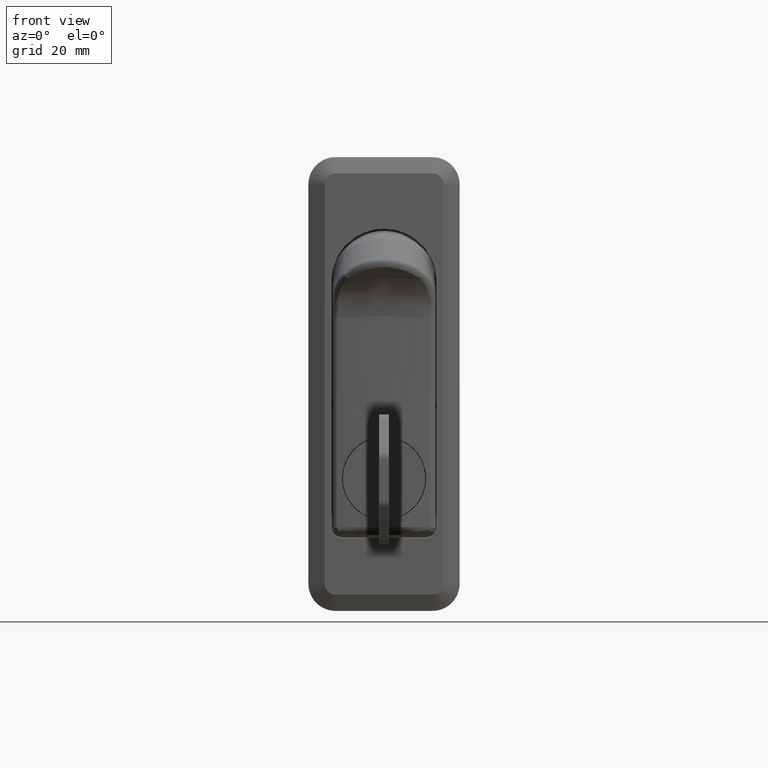
[diagram: clean part render]
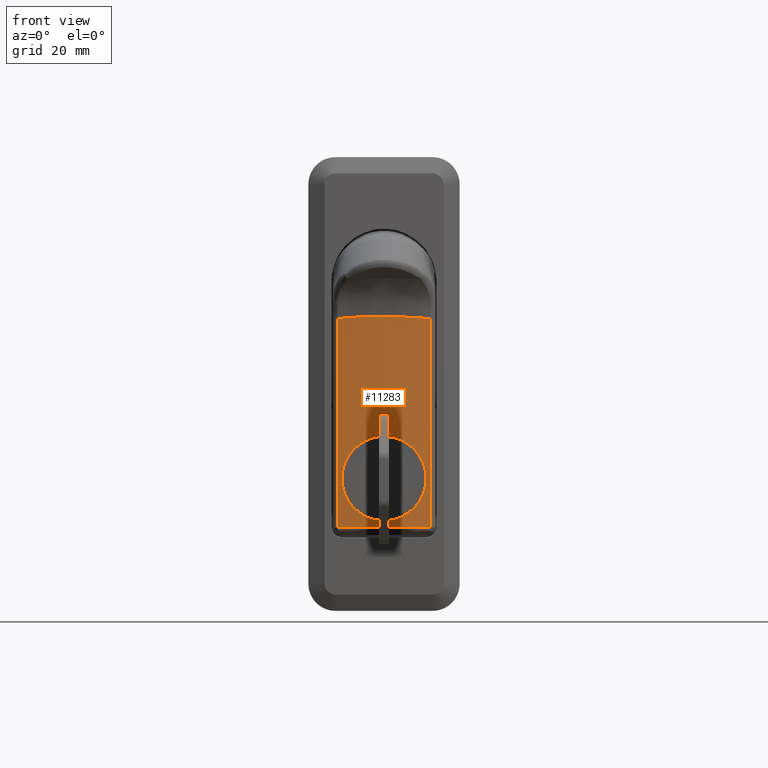
[diagram: same view with one face highlighted and labeled with its STEP entity id]
A machine part, front view. The second image highlights one B-rep face of the part: STEP entity #11283.
In plain terms, the highlighted face is a freeform B-spline surface patch.
Its self-contained STEP definition (entity closure, byte-faithful):
#7575=CARTESIAN_POINT('',(-3.163471673709754,7.797336414500586,-36.704179287148143));
#7576=VERTEX_POINT('',#7575);
#7582=CARTESIAN_POINT('',(-3.499999712627637,-0.002837242277189,-44.299999483977949));
#7583=VERTEX_POINT('',#7582);
#7584=CARTESIAN_POINT('',(-3.499999712627637,-0.002837242277189,-44.299999483977949));
#7585=CARTESIAN_POINT('',(-3.500015667970896,0.506299374181433,-44.300184673988753));
#7586=CARTESIAN_POINT('',(-3.495735134382995,1.012475632470231,-44.250999029313732));
#7587=CARTESIAN_POINT('',(-3.485200652133017,1.641413786318305,-44.126414631079307));
#7588=CARTESIAN_POINT('',(-3.482826722223379,1.767361161596372,-44.098219744974507));
#7589=CARTESIAN_POINT('',(-3.477612909249074,2.016694737102635,-44.035877498881291));
#7590=CARTESIAN_POINT('',(-3.474774316568202,2.140117014045488,-44.001746271888152));
#7591=CARTESIAN_POINT('',(-3.465607052815723,2.506721726917275,-43.890639764998213));
#7592=CARTESIAN_POINT('',(-3.451647054625713,2.985779655732975,-43.719304912791372));
#7593=CARTESIAN_POINT('',(-3.434662004387854,3.445662508486318,-43.502318869206803));
#7594=CARTESIAN_POINT('',(-3.420956011501259,3.783296200561489,-43.322236920489402));
#7595=CARTESIAN_POINT('',(-3.416226218729454,3.894625551788534,-43.259314078862097));
#7596=CARTESIAN_POINT('',(-3.406473164732041,4.114812098047372,-43.127575219378421));
#7597=CARTESIAN_POINT('',(-3.401438688207159,4.223886311615114,-43.058598297777628));
#7598=CARTESIAN_POINT('',(-3.375881920821083,4.757356095233960,-42.702485438314923));
#7599=CARTESIAN_POINT('',(-3.354054737206618,5.150214080764108,-42.379948897204883));
#7600=CARTESIAN_POINT('',(-3.321125267799095,5.690055067060210,-41.841147190471133));
#7601=CARTESIAN_POINT('',(-3.310116086323794,5.861701314641022,-41.652314079863970));
#7602=CARTESIAN_POINT('',(-3.293793206548472,6.106346904465669,-41.354785828961589));
#7603=CARTESIAN_POINT('',(-3.288382158216202,6.185773577053046,-41.253162875337352));
#7604=CARTESIAN_POINT('',(-3.277783479477288,6.338576592193272,-41.047394246230127));
#7605=CARTESIAN_POINT('',(-3.272580507801084,6.412186194893108,-40.942975770278260));
#7606=CARTESIAN_POINT('',(-3.247133087575095,6.766505435989546,-40.413335551028901));
#7607=CARTESIAN_POINT('',(-3.228590825209961,7.006422535973809,-39.965686120730957));
#7608=CARTESIAN_POINT('',(-3.209019564049388,7.251555285499832,-39.375961247960007));
#7609=CARTESIAN_POINT('',(-3.205285778725853,7.297818944389143,-39.256494570323561));
#7610=CARTESIAN_POINT('',(-3.199981935726293,7.362986792672221,-39.074965271195794));
#7611=CARTESIAN_POINT('',(-3.198261893717154,7.384023467534030,-39.014004141236910));
#7612=CARTESIAN_POINT('',(-3.194942522793417,7.424459072807421,-38.891950009361651));
#7613=CARTESIAN_POINT('',(-3.193341140144468,7.443883428015906,-38.830790994304408));
#7614=CARTESIAN_POINT('',(-3.185629973417087,7.537080002209233,-38.524343062034909));
#7615=CARTESIAN_POINT('',(-3.180407612930810,7.599105731557970,-38.277100383500319));
#7616=CARTESIAN_POINT('',(-3.168814332583749,7.735783339281561,-37.592833576520903));
#7617=CARTESIAN_POINT('',(-3.164484697701834,7.785690208717634,-37.151691289452756));
#7618=CARTESIAN_POINT('',(-3.163471673709754,7.797336414500586,-36.704179287148143));
#7619=B_SPLINE_CURVE_WITH_KNOTS('',3,(#7584,#7585,#7586,#7587,#7588,#7589,#7590,#7591,#7592,#7593,#7594,#7595,#7596,#7597,#7598,#7599,#7600,#7601,#7602,#7603,#7604,#7605,#7606,#7607,#7608,#7609,#7610,#7611,#7612,#7613,#7614,#7615,#7616,#7617,#7618),.UNSPECIFIED.,.F.,.U.,(4,2,2,2,1,2,2,2,2,2,2,2,2,2,2,2,2,4),(0.500000000000008,0.531250000000008,0.539062500000008,0.546875000000008,0.562500000000009,0.578125000000009,0.585937500000009,0.593750000000009,0.625000000000009,0.640625000000009,0.648437500000009,0.656250000000010,0.687500000000009,0.695312500000010,0.699218750000010,0.703125000000010,0.718750000000010,0.746015445029521),.UNSPECIFIED.);
#7620=EDGE_CURVE('',#7583,#7576,#7619,.T.);
#7622=CARTESIAN_POINT('',(-3.163471994362835,-7.797336546078635,-36.295820709390213));
#7623=VERTEX_POINT('',#7622);
#7624=CARTESIAN_POINT('',(-3.163471994362835,-7.797336546078635,-36.295820709390213));
#7625=CARTESIAN_POINT('',(-3.163321156371905,-7.799069992812277,-36.362423699482257));
#7626=CARTESIAN_POINT('',(-3.163244014223719,-7.799953370555923,-36.429073223115168));
#7627=CARTESIAN_POINT('',(-3.163228942735241,-7.800127780787051,-36.750240093922969));
#7628=CARTESIAN_POINT('',(-3.164294225022513,-7.787845046546245,-37.005390998736310));
#7629=CARTESIAN_POINT('',(-3.167534320797989,-7.750210759453220,-37.389168831290682));
#7630=CARTESIAN_POINT('',(-3.168890069566218,-7.734434385301294,-37.517268215268430));
#7631=CARTESIAN_POINT('',(-3.172108880973109,-7.696817179983642,-37.770951854864691));
#7632=CARTESIAN_POINT('',(-3.173974504731427,-7.674946617231197,-37.896899461223512));
#7633=CARTESIAN_POINT('',(-3.184528845581640,-7.550536549372821,-38.522240980591683));
#7634=CARTESIAN_POINT('',(-3.196896131477537,-7.403256069825067,-39.008570309577181));
#7635=CARTESIAN_POINT('',(-3.216404503623982,-7.159095108365786,-39.598965161224072));
#7636=CARTESIAN_POINT('',(-3.220508564996718,-7.107232861614247,-39.716160450932328));
#7637=CARTESIAN_POINT('',(-3.229099221913261,-6.997326777128419,-39.948748961179220));
#7638=CARTESIAN_POINT('',(-3.233572930704840,-6.939443150165293,-40.063766163581327));
#7639=CARTESIAN_POINT('',(-3.247374451028131,-6.758398814999707,-40.402502499077052));
#7640=CARTESIAN_POINT('',(-3.257120055234323,-6.627382014202743,-40.620954586819607));
#7641=CARTESIAN_POINT('',(-3.287536729775205,-6.204084969772434,-41.254725796595892));
#7642=CARTESIAN_POINT('',(-3.309393832339932,-5.881856712763933,-41.648672096851101));
#7643=CARTESIAN_POINT('',(-3.342739350694262,-5.335973063136458,-42.195052772893540));
#7644=CARTESIAN_POINT('',(-3.353771202506427,-5.146336511413446,-42.366853647579539));
#7645=CARTESIAN_POINT('',(-3.375322453370879,-4.752877751465729,-42.689904001653922));
#7646=CARTESIAN_POINT('',(-3.396375368744553,-4.345016026799991,-42.992613587090077));
#7647=CARTESIAN_POINT('',(-3.415841590578607,-3.908516880629391,-43.254921005647532));
#7648=CARTESIAN_POINT('',(-3.429622876040225,-3.570153697501830,-43.436162904118142));
#7649=CARTESIAN_POINT('',(-3.434085485765753,-3.455384706556329,-43.494059599962164));
#7650=CARTESIAN_POINT('',(-3.442675604895467,-3.222721226223690,-43.604267975527840));
#7651=CARTESIAN_POINT('',(-3.446778712544513,-3.105500489403909,-43.656269763110743));
#7652=CARTESIAN_POINT('',(-3.466280445576667,-2.515041126188560,-43.901084345173480));
#7653=CARTESIAN_POINT('',(-3.478636383421019,-2.028859119724737,-44.048747894770521));
#7654=CARTESIAN_POINT('',(-3.489194653490481,-1.404005116136566,-44.173656839347672));
#7655=CARTESIAN_POINT('',(-3.491061971316744,-1.278170308250221,-44.195628158511532));
#7656=CARTESIAN_POINT('',(-3.494286637648604,-1.024744852063868,-44.233454000175122));
#7657=CARTESIAN_POINT('',(-3.495646433139064,-0.896844372693256,-44.249337064727783));
#7658=CARTESIAN_POINT('',(-3.498909714584933,-0.512719190361299,-44.287383450704198));
#7659=CARTESIAN_POINT('',(-3.499991734955923,-0.257405556195503,-44.299906888824637));
#7660=CARTESIAN_POINT('',(-3.499999712627637,-0.002837242277189,-44.299999483977949));
#7661=B_SPLINE_CURVE_WITH_KNOTS('',3,(#7624,#7625,#7626,#7627,#7628,#7629,#7630,#7631,#7632,#7633,#7634,#7635,#7636,#7637,#7638,#7639,#7640,#7641,#7642,#7643,#7644,#7645,#7646,#7647,#7648,#7649,#7650,#7651,#7652,#7653,#7654,#7655,#7656,#7657,#7658,#7659,#7660),.UNSPECIFIED.,.F.,.U.,(4,2,2,2,2,2,2,2,2,2,2,1,2,2,2,2,2,2,4),(0.245904745269688,0.250000000000004,0.265625000000004,0.273437500000004,0.281250000000005,0.312500000000006,0.320312500000006,0.328125000000006,0.343750000000006,0.375000000000006,0.390625000000007,0.406250000000007,0.421875000000007,0.429687500000007,0.437500000000007,0.468750000000007,0.476562500000008,0.484375000000008,0.500000000000008),.UNSPECIFIED.);
#7662=EDGE_CURVE('',#7623,#7583,#7661,.T.);
#7738=CARTESIAN_POINT('',(-3.499999757066496,-0.000001150738018,-28.699999999999999));
#7739=VERTEX_POINT('',#7738);
#7740=CARTESIAN_POINT('',(-3.499999757066496,-0.000001150738018,-28.699999999999999));
#7741=CARTESIAN_POINT('',(-3.499999757066489,-0.515562426193243,-28.700000084336210));
#7742=CARTESIAN_POINT('',(-3.495597687190028,-1.022460644603922,-28.750612985866660));
#7743=CARTESIAN_POINT('',(-3.483025836149183,-1.770355733733357,-28.899313029341091));
#7744=CARTESIAN_POINT('',(-3.477839780578404,-2.017563353085154,-28.961100226698960));
#7745=CARTESIAN_POINT('',(-3.468646209309283,-2.385169214698864,-29.072527109207591));
#7746=CARTESIAN_POINT('',(-3.465339190721322,-2.507399361564853,-29.112882891797799));
#7747=CARTESIAN_POINT('',(-3.458298075469847,-2.749719009198963,-29.199616855875082));
#7748=CARTESIAN_POINT('',(-3.454579494559249,-2.869312525961688,-29.245803497850080));
#7749=CARTESIAN_POINT('',(-3.435083317682315,-3.459610832662694,-29.490547848527861));
#7750=CARTESIAN_POINT('',(-3.416598271681636,-3.907526401609858,-29.730143556936330));
#7751=CARTESIAN_POINT('',(-3.391212130969506,-4.437337336844151,-30.083907852095209));
#7752=CARTESIAN_POINT('',(-3.386020896400539,-4.541781766894414,-30.157398768743580));
#7753=CARTESIAN_POINT('',(-3.375444473272010,-4.747587672685808,-30.309945100964580));
#7754=CARTESIAN_POINT('',(-3.370044200645016,-4.849220191055627,-30.389228511536139));
#7755=CARTESIAN_POINT('',(-3.353729695683567,-5.147137522582325,-30.633744931776679));
#7756=CARTESIAN_POINT('',(-3.342722290768216,-5.336187765966442,-30.805291030203659));
#7757=CARTESIAN_POINT('',(-3.309786841879504,-5.875550523263638,-31.344761508728968));
#7758=CARTESIAN_POINT('',(-3.287940460599099,-6.198340293249832,-31.737280812875309));
#7759=CARTESIAN_POINT('',(-3.262343226122799,-6.554723666608964,-32.270112076974222));
#7760=CARTESIAN_POINT('',(-3.257297063471891,-6.623790927567764,-32.379103581172252));
#7761=CARTESIAN_POINT('',(-3.247511674176399,-6.755805818474379,-32.599297913989389));
#7762=CARTESIAN_POINT('',(-3.242765544336312,-6.818856087528687,-32.710621389214950));
#7763=CARTESIAN_POINT('',(-3.229010309363035,-6.999295691763164,-33.048205928447238));
#7764=CARTESIAN_POINT('',(-3.211959004056598,-7.216693254409475,-33.507939243670833));
#7765=CARTESIAN_POINT('',(-3.197934065031241,-7.388376866612656,-33.986654386628253));
#7766=CARTESIAN_POINT('',(-3.188719106554131,-7.499746669681836,-34.352917764831837));
#7767=CARTESIAN_POINT('',(-3.185864778992981,-7.533965959417987,-34.476212193767203));
#7768=CARTESIAN_POINT('',(-3.180619830171640,-7.596489489043802,-34.725259507440562));
#7769=CARTESIAN_POINT('',(-3.178226521727996,-7.624824809106013,-34.851246448201067));
#7770=CARTESIAN_POINT('',(-3.168712548267763,-7.736974165382075,-35.414606691966277));
#7771=CARTESIAN_POINT('',(-3.164472168342348,-7.785842968135106,-35.854190723990733));
#7772=CARTESIAN_POINT('',(-3.163471994362835,-7.797336546078635,-36.295820709390213));
#7773=B_SPLINE_CURVE_WITH_KNOTS('',3,(#7740,#7741,#7742,#7743,#7744,#7745,#7746,#7747,#7748,#7749,#7750,#7751,#7752,#7753,#7754,#7755,#7756,#7757,#7758,#7759,#7760,#7761,#7762,#7763,#7764,#7765,#7766,#7767,#7768,#7769,#7770,#7771,#7772),.UNSPECIFIED.,.F.,.U.,(4,2,2,2,2,2,2,2,2,2,2,2,1,2,2,2,4),(0.0,0.031250000000000,0.046875000000001,0.054687500000001,0.062500000000001,0.093750000000001,0.101562500000001,0.109375000000001,0.125000000000001,0.156250000000002,0.164062500000002,0.171875000000002,0.187500000000003,0.203125000000003,0.210937500000003,0.218750000000003,0.245904745269688),.UNSPECIFIED.);
#7774=EDGE_CURVE('',#7739,#7623,#7773,.T.);
#7776=CARTESIAN_POINT('',(-3.163471673709754,7.797336414500586,-36.704179287148143));
#7777=CARTESIAN_POINT('',(-3.163323631021384,7.799038461200506,-36.638780166899039));
#7778=CARTESIAN_POINT('',(-3.163246420248489,7.799923385924488,-36.573245010456823));
#7779=CARTESIAN_POINT('',(-3.163230088470303,7.800112286493918,-36.378810596620802));
#7780=CARTESIAN_POINT('',(-3.163496072291616,7.797039675156274,-36.250137154258518));
#7781=CARTESIAN_POINT('',(-3.164567899994566,7.784635492853665,-35.994320071099857));
#7782=CARTESIAN_POINT('',(-3.165373665599750,7.775304750892115,-35.866962498346673));
#7783=CARTESIAN_POINT('',(-3.168579753596143,7.738066136513823,-35.486517980601860));
#7784=CARTESIAN_POINT('',(-3.174957943115276,7.663801189279785,-34.983592872619482));
#7785=CARTESIAN_POINT('',(-3.185326084991025,7.540710085396992,-34.489263008901631));
#7786=CARTESIAN_POINT('',(-3.194516311105883,7.429700325421915,-34.121804343924552));
#7787=CARTESIAN_POINT('',(-3.197817094488126,7.389554841038889,-33.999807647248602));
#7788=CARTESIAN_POINT('',(-3.204868537733145,7.302973740350055,-33.757180049994332));
#7789=CARTESIAN_POINT('',(-3.208592687316620,7.256862816287514,-33.637449555494420));
#7790=CARTESIAN_POINT('',(-3.228116960840428,7.012505088493068,-33.046543076486380));
#7791=CARTESIAN_POINT('',(-3.246624612588141,6.773244435665463,-32.598384090544677));
#7792=CARTESIAN_POINT('',(-3.272017682079964,6.420102479674916,-32.068472856671292));
#7793=CARTESIAN_POINT('',(-3.277209279373178,6.346746254000917,-31.964018684805289));
#7794=CARTESIAN_POINT('',(-3.287784027627200,6.194494560151678,-31.758211733449080));
#7795=CARTESIAN_POINT('',(-3.293179300789584,6.115417135363895,-31.656639361796710));
#7796=CARTESIAN_POINT('',(-3.309513168700775,5.870979303228857,-31.358242097251679));
#7797=CARTESIAN_POINT('',(-3.320528947033071,5.699505827402593,-31.168932548400939));
#7798=CARTESIAN_POINT('',(-3.353474538822764,5.160351159968386,-30.628923984425011));
#7799=CARTESIAN_POINT('',(-3.375306887205249,4.768170657147190,-30.305880074617150));
#7800=CARTESIAN_POINT('',(-3.400868882647933,4.236057231729217,-29.949259113195421));
#7801=CARTESIAN_POINT('',(-3.405908091778105,4.127209537151368,-29.880134286370829));
#7802=CARTESIAN_POINT('',(-3.415694038182095,3.906961875467473,-29.747805360603021));
#7803=CARTESIAN_POINT('',(-3.420439451821570,3.795621694069326,-29.684610528429939));
#7804=CARTESIAN_POINT('',(-3.434190306492637,3.458019280058488,-29.503766901298420));
#7805=CARTESIAN_POINT('',(-3.451229778601971,2.998348056911369,-29.285909378219340));
#7806=CARTESIAN_POINT('',(-3.465239996229172,2.519893506379378,-29.113850890708601));
#7807=CARTESIAN_POINT('',(-3.474446668431591,2.153912261328041,-29.002205400049199));
#7808=CARTESIAN_POINT('',(-3.477298697158392,2.030726353438128,-28.967895120579328));
#7809=CARTESIAN_POINT('',(-3.482540663701090,1.781927536913650,-28.905186708674670));
#7810=CARTESIAN_POINT('',(-3.484934584715298,1.656040204929170,-28.876741767854242));
#7811=CARTESIAN_POINT('',(-3.495595242732047,1.025524106743877,-28.750618572524889));
#7812=CARTESIAN_POINT('',(-3.499999757066340,0.515560145156425,-28.699999916196042));
#7813=CARTESIAN_POINT('',(-3.499999757066496,-0.000001150738018,-28.699999999999999));
#7814=B_SPLINE_CURVE_WITH_KNOTS('',3,(#7776,#7777,#7778,#7779,#7780,#7781,#7782,#7783,#7784,#7785,#7786,#7787,#7788,#7789,#7790,#7791,#7792,#7793,#7794,#7795,#7796,#7797,#7798,#7799,#7800,#7801,#7802,#7803,#7804,#7805,#7806,#7807,#7808,#7809,#7810,#7811,#7812,#7813),.UNSPECIFIED.,.F.,.U.,(4,2,2,2,1,2,2,2,2,2,2,2,2,2,2,1,2,2,2,4),(0.746015445029521,0.750000000000010,0.757812500000010,0.765625000000010,0.781250000000010,0.796875000000010,0.804687500000009,0.812500000000009,0.843750000000007,0.851562500000007,0.859375000000006,0.875000000000006,0.906250000000005,0.914062500000004,0.921875000000004,0.937500000000003,0.953125000000002,0.960937500000002,0.968750000000002,1.0),.UNSPECIFIED.);
#7815=EDGE_CURVE('',#7576,#7739,#7814,.T.);
#8790=CARTESIAN_POINT('',(-3.090934114809360,8.594972056695720,-45.461099677032287));
#8791=VERTEX_POINT('',#8790);
#8792=CARTESIAN_POINT('',(-3.090934336830985,-8.594972030980911,-45.461099698145702));
#8793=VERTEX_POINT('',#8792);
#8794=CARTESIAN_POINT('',(-3.090934114809360,8.594972056695720,-45.461099677032287));
#8795=CARTESIAN_POINT('',(-3.910922684611546,0.000000023447813,-45.539077789100780));
#8796=CARTESIAN_POINT('',(-3.090934336830928,-8.594972030980898,-45.461099698145773));
#8804=(BOUNDED_CURVE()B_SPLINE_CURVE(2,(#8794,#8795,#8796),.UNSPECIFIED.,.F.,.U.)CURVE()GEOMETRIC_REPRESENTATION_ITEM()QUASI_UNIFORM_CURVE()RATIONAL_B_SPLINE_CURVE((1.0,0.995479939973218,1.0))REPRESENTATION_ITEM(''));
#8805=EDGE_CURVE('',#8791,#8793,#8804,.T.);
#9341=CARTESIAN_POINT('',(-3.090934114809360,8.594972056695681,-6.884627121455281));
#9342=VERTEX_POINT('',#9341);
#9343=CARTESIAN_POINT('',(-3.090934114809360,8.594972056695681,-6.884627121455281));
#9344=CARTESIAN_POINT('',(-3.090934114809360,8.594972056695720,-45.461099677032287));
#9345=QUASI_UNIFORM_CURVE('',1,(#9343,#9344),.UNSPECIFIED.,.F.,.U.);
#9346=EDGE_CURVE('',#9342,#8791,#9345,.T.);
#10066=CARTESIAN_POINT('',(-3.090934336830985,-8.594972030980900,-6.884626874900880));
#10067=VERTEX_POINT('',#10066);
#10123=CARTESIAN_POINT('',(-3.090934336830985,-8.594972030980911,-45.461099698145702));
#10124=CARTESIAN_POINT('',(-3.090934336830985,-8.594972030980900,-6.884626874900880));
#10125=QUASI_UNIFORM_CURVE('',1,(#10123,#10124),.UNSPECIFIED.,.F.,.U.);
#10126=EDGE_CURVE('',#8793,#10067,#10125,.T.);
#10168=CARTESIAN_POINT('',(-3.090934336830985,-8.594972030980900,-6.884626874900880));
#10169=CARTESIAN_POINT('',(-3.910922684611587,0.000000023448032,-5.974032101741286));
#10170=CARTESIAN_POINT('',(-3.090934114809360,8.594972056695681,-6.884627121455281));
#10178=(BOUNDED_CURVE()B_SPLINE_CURVE(2,(#10168,#10169,#10170),.UNSPECIFIED.,.F.,.U.)CURVE()GEOMETRIC_REPRESENTATION_ITEM()QUASI_UNIFORM_CURVE()RATIONAL_B_SPLINE_CURVE((1.0,0.995479939973294,1.0))REPRESENTATION_ITEM(''));
#10179=EDGE_CURVE('',#10067,#9342,#10178,.T.);
#11257=CARTESIAN_POINT('',(-3.005358806449677,9.449092140222190,-5.453619877772896));
#11258=CARTESIAN_POINT('',(-3.005358806449677,9.449092140222190,-46.501159935936911));
#11259=CARTESIAN_POINT('',(-3.997362909867226,-0.000037468983345,-5.453619877772897));
#11260=CARTESIAN_POINT('',(-3.997362909867226,-0.000037468983345,-46.501159935936911));
#11261=CARTESIAN_POINT('',(-3.005351263907826,-9.449166286342271,-5.453619877772895));
#11262=CARTESIAN_POINT('',(-3.005351263907826,-9.449166286342271,-46.501159935936904));
#11270=(BOUNDED_SURFACE()B_SPLINE_SURFACE(1,2,((#11257,#11259,#11261),(#11258,#11260,#11262)),.UNSPECIFIED.,.F.,.F.,.U.)B_SPLINE_SURFACE_WITH_KNOTS((2,2),(3,3),(0.0,41.047540058164010),(0.0,18.950045918942131),.UNSPECIFIED.)GEOMETRIC_REPRESENTATION_ITEM()RATIONAL_B_SPLINE_SURFACE(((0.997907052467862,0.992407228204057,0.997815398722046),(0.997907052467862,0.992407228204057,0.997815398722046)))REPRESENTATION_ITEM('')SURFACE());
#11271=ORIENTED_EDGE('',*,*,#9346,.T.);
#11272=ORIENTED_EDGE('',*,*,#8805,.T.);
#11273=ORIENTED_EDGE('',*,*,#10126,.T.);
#11274=ORIENTED_EDGE('',*,*,#10179,.T.);
#11275=EDGE_LOOP('',(#11271,#11272,#11273,#11274));
#11276=FACE_OUTER_BOUND('',#11275,.T.);
#11277=ORIENTED_EDGE('',*,*,#7774,.T.);
#11278=ORIENTED_EDGE('',*,*,#7662,.T.);
#11279=ORIENTED_EDGE('',*,*,#7620,.T.);
#11280=ORIENTED_EDGE('',*,*,#7815,.T.);
#11281=EDGE_LOOP('',(#11277,#11278,#11279,#11280));
#11282=FACE_BOUND('',#11281,.T.);
#11283=ADVANCED_FACE('',(#11276,#11282),#11270,.T.);